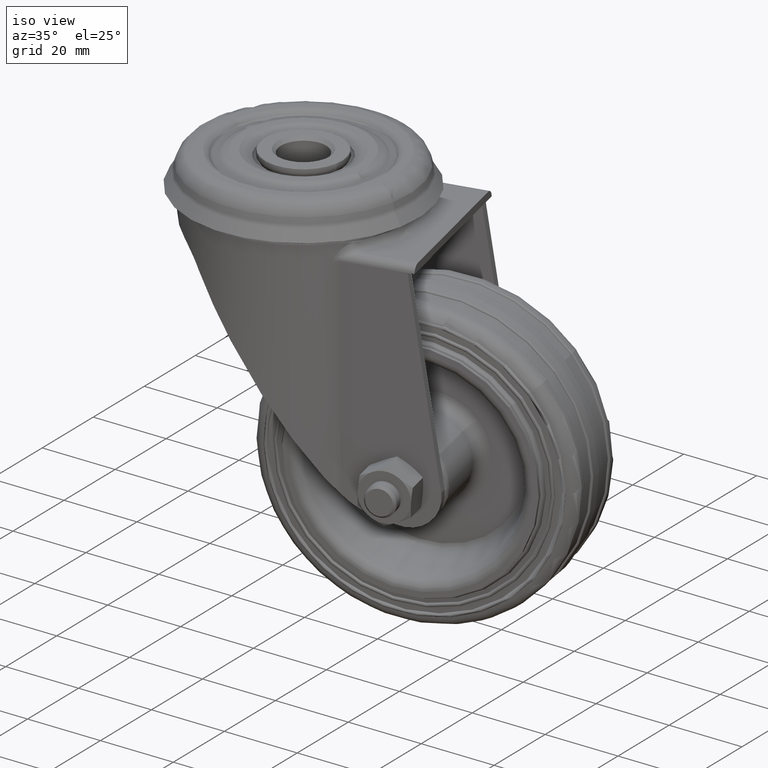
[diagram: clean part render]
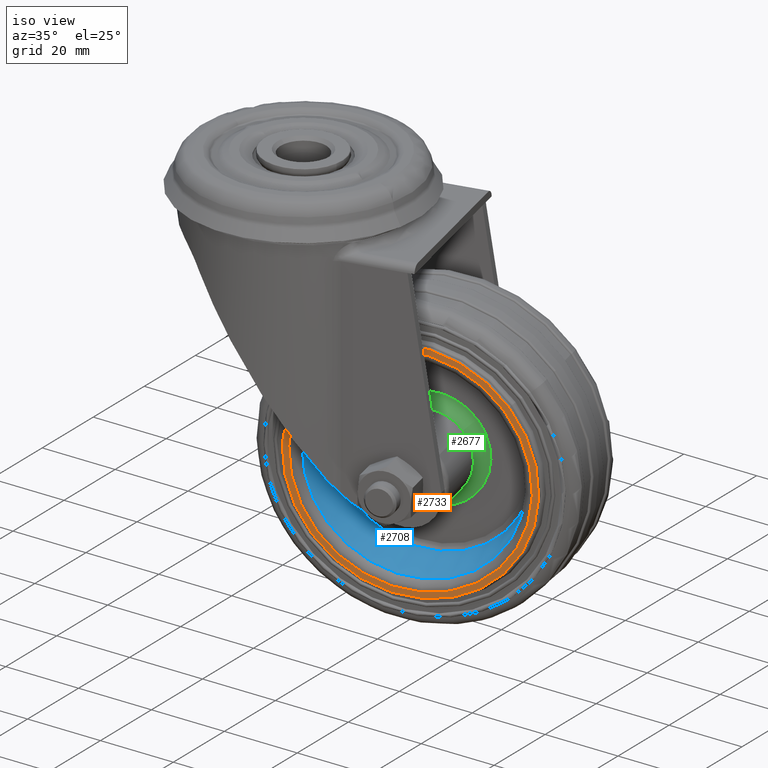
[diagram: same view with three faces highlighted in distinct colors, each labeled with its STEP entity id]
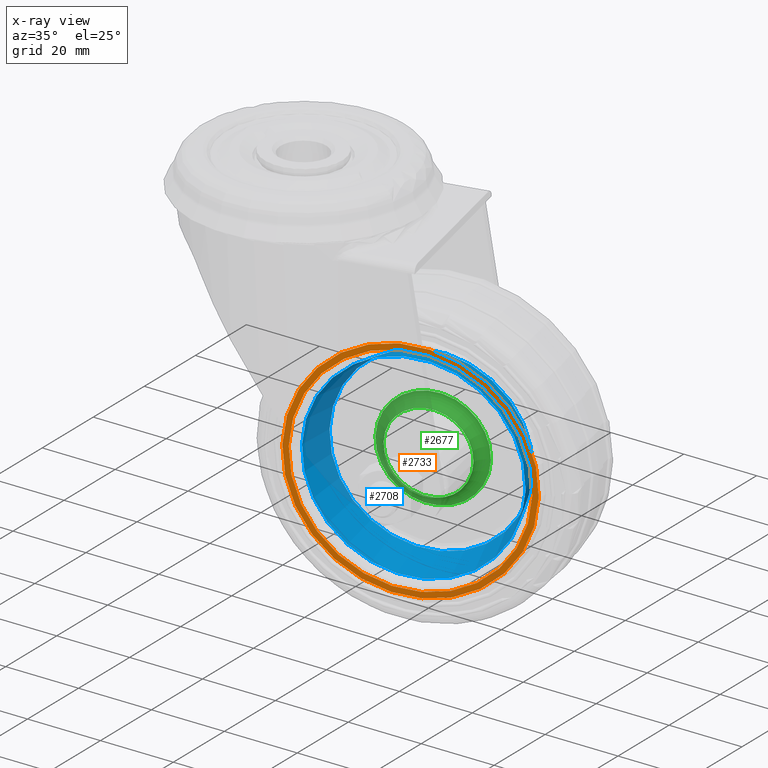
[diagram: x-ray of the same camera — body ghosted, the three highlighted faces saturated]
A machine part, iso view with three faces highlighted in distinct colors.
The next image is the same camera in x-ray (body ghosted, the three faces saturated) — at least one of them is partly hidden behind the body in this view.
Their STEP definitions:

[orange] entity #2733 — the highlighted planar face has unit normal (0.2133, -0.977, -0).
#387=PLANE('',#3071);
#552=FACE_BOUND('',#968,.T.);
#704=FACE_OUTER_BOUND('',#967,.T.);
#967=EDGE_LOOP('',(#2310));
#968=EDGE_LOOP('',(#2311));
#1124=CIRCLE('',#2962,29.6798115314864);
#1180=CIRCLE('',#3044,31.2500000000001);
#1343=VERTEX_POINT('',#9820);
#1393=VERTEX_POINT('',#10000);
#1653=EDGE_CURVE('',#1343,#1343,#1124,.T.);
#1709=EDGE_CURVE('',#1393,#1393,#1180,.T.);
#2310=ORIENTED_EDGE('',*,*,#1709,.T.);
#2311=ORIENTED_EDGE('',*,*,#1653,.F.);
#2733=ADVANCED_FACE('',(#704,#552),#387,.T.);
#2962=AXIS2_PLACEMENT_3D('',#9821,#3531,#3532);
#3044=AXIS2_PLACEMENT_3D('',#10001,#3695,#3696);
#3071=AXIS2_PLACEMENT_3D('',#10077,#3749,#3750);
#3531=DIRECTION('center_axis',(-1.,7.48133473453735E-17,4.58099631800054E-33));
#3532=DIRECTION('ref_axis',(0.,1.40422167898267E-16,1.));
#3695=DIRECTION('center_axis',(-1.,0.,0.));
#3696=DIRECTION('ref_axis',(0.,0.,1.));
#3749=DIRECTION('center_axis',(-1.,0.,0.));
#3750=DIRECTION('ref_axis',(0.,0.,1.));
#9820=CARTESIAN_POINT('',(-14.2,0.,29.6798115314864));
#9821=CARTESIAN_POINT('Origin',(-14.2,-4.1677034780633E-15,0.));
#10000=CARTESIAN_POINT('',(-14.2,0.,31.2500000000001));
#10001=CARTESIAN_POINT('Origin',(-14.2,0.,0.));
#10077=CARTESIAN_POINT('Origin',(-14.2,0.,0.));

[blue] entity #2708 — the highlighted conical surface has half-angle 13.627 deg.
#468=CONICAL_SURFACE('',#3040,27.2501862672646,0.23783592745745);
#530=FACE_BOUND('',#921,.T.);
#679=FACE_OUTER_BOUND('',#920,.T.);
#920=EDGE_LOOP('',(#2241));
#921=EDGE_LOOP('',(#2242));
#1119=CIRCLE('',#2955,24.7914226060559);
#1123=CIRCLE('',#2961,27.2501862672646);
#1338=VERTEX_POINT('',#9808);
#1342=VERTEX_POINT('',#9818);
#1648=EDGE_CURVE('',#1338,#1338,#1119,.T.);
#1652=EDGE_CURVE('',#1342,#1342,#1123,.T.);
#2241=ORIENTED_EDGE('',*,*,#1648,.T.);
#2242=ORIENTED_EDGE('',*,*,#1652,.F.);
#2708=ADVANCED_FACE('',(#679,#530),#468,.F.);
#2955=AXIS2_PLACEMENT_3D('',#9809,#3517,#3518);
#2961=AXIS2_PLACEMENT_3D('',#9819,#3529,#3530);
#3040=AXIS2_PLACEMENT_3D('',#9995,#3687,#3688);
#3517=DIRECTION('center_axis',(1.,0.,0.));
#3518=DIRECTION('ref_axis',(0.,0.,1.));
#3529=DIRECTION('center_axis',(1.,0.,0.));
#3530=DIRECTION('ref_axis',(0.,0.,1.));
#3687=DIRECTION('center_axis',(-1.,0.,0.));
#3688=DIRECTION('ref_axis',(0.,0.,1.));
#9808=CARTESIAN_POINT('',(-2.14659996156774,0.,24.7914226060559));
#9809=CARTESIAN_POINT('Origin',(-2.14659996156774,0.,0.));
#9818=CARTESIAN_POINT('',(-12.2890000640537,0.,27.2501862672646));
#9819=CARTESIAN_POINT('Origin',(-12.2890000640537,0.,0.));
#9995=CARTESIAN_POINT('Origin',(-12.2890000640537,0.,0.));

[green] entity #2677 — the highlighted toroidal blend (fillet) surface has major radius 14.075 mm and minor (blend) radius 3 mm.
#146=TOROIDAL_SURFACE('',#2948,14.0750000000001,2.99999999999999);
#505=FACE_BOUND('',#865,.T.);
#648=FACE_OUTER_BOUND('',#864,.T.);
#864=EDGE_LOOP('',(#2159,#2160));
#865=EDGE_LOOP('',(#2161));
#1115=CIRCLE('',#2949,14.0750000000091);
#1116=CIRCLE('',#2950,14.0750000000091);
#1117=CIRCLE('',#2951,11.0750000000001);
#1332=VERTEX_POINT('',#9626);
#1333=VERTEX_POINT('',#9627);
#1334=VERTEX_POINT('',#9630);
#1642=EDGE_CURVE('',#1332,#1333,#1115,.T.);
#1643=EDGE_CURVE('',#1333,#1332,#1116,.T.);
#1644=EDGE_CURVE('',#1334,#1334,#1117,.T.);
#2159=ORIENTED_EDGE('',*,*,#1642,.F.);
#2160=ORIENTED_EDGE('',*,*,#1643,.F.);
#2161=ORIENTED_EDGE('',*,*,#1644,.F.);
#2677=ADVANCED_FACE('',(#648,#505),#146,.F.);
#2948=AXIS2_PLACEMENT_3D('',#9625,#3503,#3504);
#2949=AXIS2_PLACEMENT_3D('',#9628,#3505,#3506);
#2950=AXIS2_PLACEMENT_3D('',#9629,#3507,#3508);
#2951=AXIS2_PLACEMENT_3D('',#9631,#3509,#3510);
#3503=DIRECTION('center_axis',(-1.,-3.25230124925064E-16,-2.97931447381504E-17));
#3504=DIRECTION('ref_axis',(-2.60081528462701E-17,0.,1.));
#3505=DIRECTION('center_axis',(1.,3.01933184801877E-12,4.92994238288256E-18));
#3506=DIRECTION('ref_axis',(-9.85988476575878E-18,1.13450644523348E-6,0.999999999999357));
#3507=DIRECTION('center_axis',(1.,-3.01933677796675E-12,-4.76325003195771E-28));
#3508=DIRECTION('ref_axis',(0.,-1.13450644518781E-6,-0.999999999999357));
#3509=DIRECTION('center_axis',(-1.,0.,0.));
#3510=DIRECTION('ref_axis',(0.,0.,1.));
#9625=CARTESIAN_POINT('Origin',(-3.99999999999999,-2.77555756156289E-14,
-1.76941794549634E-15));
#9626=CARTESIAN_POINT('',(-0.999999999999999,1.72369036979991E-15,-14.0750000000001));
#9627=CARTESIAN_POINT('',(-0.999999999999999,0.,14.0750000000001));
#9628=CARTESIAN_POINT('Origin',(-1.,-1.59681782166716E-5,2.22044604925031E-15));
#9629=CARTESIAN_POINT('Origin',(-1.,1.59681782177524E-5,-4.44089209850063E-15));
#9630=CARTESIAN_POINT('',(-4.,0.,11.0750000000001));
#9631=CARTESIAN_POINT('Origin',(-4.,0.,0.));